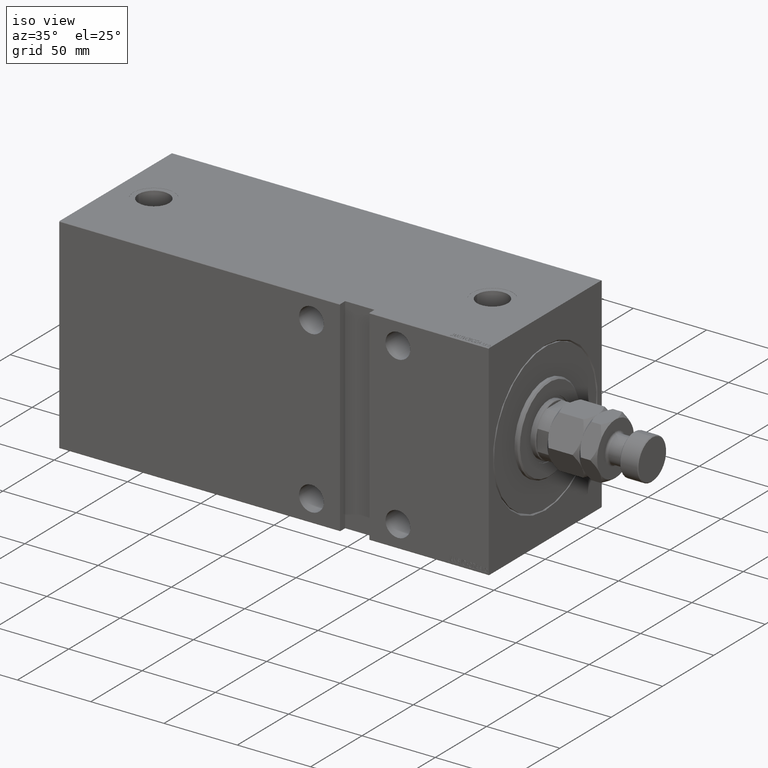
[diagram: clean part render]
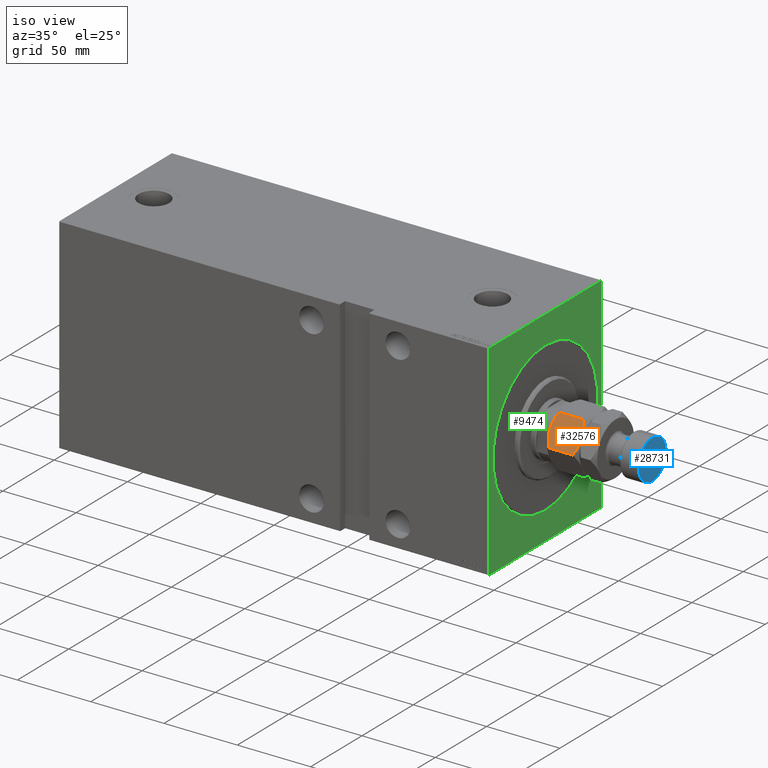
[diagram: same view with three faces highlighted in distinct colors, each labeled with its STEP entity id]
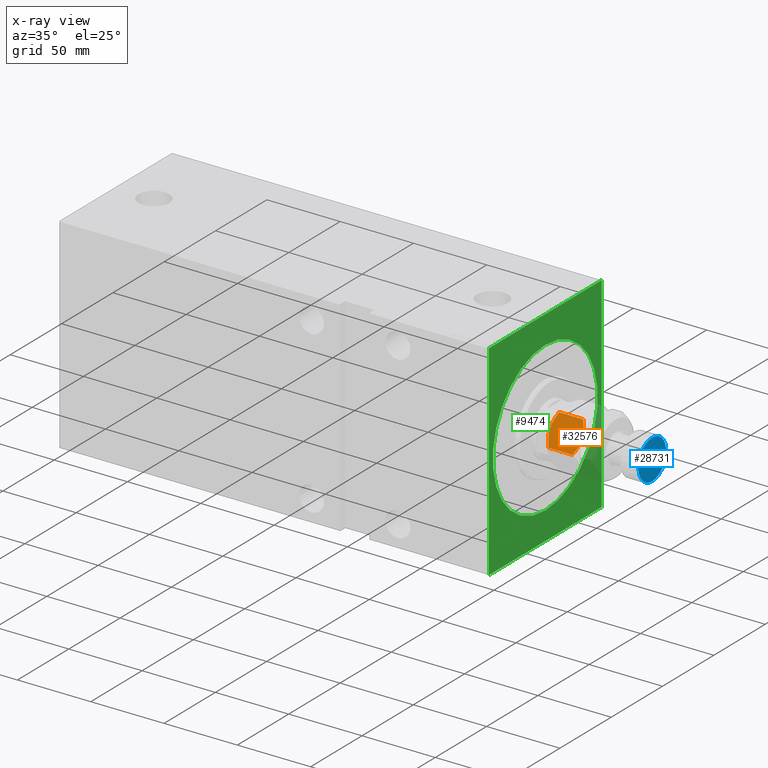
[diagram: x-ray of the same camera — body ghosted, the three highlighted faces saturated]
A machine part, iso view with three faces highlighted in distinct colors.
The next image is the same camera in x-ray (body ghosted, the three faces saturated) — at least one of them is partly hidden behind the body in this view.
Their STEP definitions:

[orange] entity #32576 — the highlighted planar face has unit normal (-0, 0.866, -0.5).
#710 = ORIENTED_EDGE ( 'NONE', *, *, #46075, .F. ) ;
#1133 = ORIENTED_EDGE ( 'NONE', *, *, #8473, .F. ) ;
#1909 = DIRECTION ( 'NONE',  ( -0.000000000000000000, -0.000000000000000000, -1.000000000000000000 ) ) ;
#3126 = AXIS2_PLACEMENT_3D ( 'NONE', #7617, #7387, #30162 ) ;
#3670 = CARTESIAN_POINT ( 'NONE',  ( -10.58425150785354241, -14.67378923359658316, 21.91305310988184374 ) ) ;
#4448 = VERTEX_POINT ( 'NONE', #8322 ) ;
#4556 = CARTESIAN_POINT ( 'NONE',  ( -16.59030399953601176, -11.20619321075668928, 1.970721325483051567 ) ) ;
#4992 = CARTESIAN_POINT ( 'NONE',  ( -5.711424626294094742E-16, -20.78460969082652454, 2.784609690826514772 ) ) ;
#5643 = CARTESIAN_POINT ( 'NONE',  ( -7.434539168300457135, -16.49227650070744033, 22.00000000000000000 ) ) ;
#7372 = EDGE_CURVE ( 'NONE', #9324, #4448, #29691, .T. ) ;
#7387 = DIRECTION ( 'NONE',  ( 0.4999999999999998335, 0.8660254037844387076, -0.000000000000000000 ) ) ;
#7583 = CARTESIAN_POINT ( 'NONE',  ( -10.56546083169953576, -14.68463803553235181, 8.233160247311796338E-16 ) ) ;
#7617 = CARTESIAN_POINT ( 'NONE',  ( -18.00000000000000000, -10.39230484541326582, 22.00000000000000000 ) ) ;
#8322 = CARTESIAN_POINT ( 'NONE',  ( -8.999999999999996447, -15.58845726811989607, 0.000000000000000000 ) ) ;
#8473 = EDGE_CURVE ( 'NONE', #29323, #9324, #24961, .T. ) ;
#9324 = VERTEX_POINT ( 'NONE', #4992 ) ;
#10188 = CARTESIAN_POINT ( 'NONE',  ( -10.97671975407795131, -14.44719758599054060, 21.86127740090141458 ) ) ;
#10389 = VERTEX_POINT ( 'NONE', #31986 ) ;
#10557 = EDGE_CURVE ( 'NONE', #10389, #19637, #44066, .T. ) ;
#13362 = EDGE_CURVE ( 'NONE', #4448, #19637, #19256, .T. ) ;
#13681 = CARTESIAN_POINT ( 'NONE',  ( -18.00000000000000000, -10.39230484541326582, 19.21539030917347901 ) ) ;
#16126 = CARTESIAN_POINT ( 'NONE',  ( -1.411330396252045816, -19.96977770663490759, 1.969777706634897152 ) ) ;
#16723 = ORIENTED_EDGE ( 'NONE', *, *, #10557, .T. ) ;
#17491 = CARTESIAN_POINT ( 'NONE',  ( -5.895697476400521886, -17.38072716576608912, 21.72360409287842131 ) ) ;
#18337 = PLANE ( 'NONE',  #3126 ) ;
#18522 = CARTESIAN_POINT ( 'NONE',  ( -15.13928418966203004, -12.04393988858690712, 1.272574701504241901 ) ) ;
#18752 = CARTESIAN_POINT ( 'NONE',  ( -12.10430252359947723, -13.79618737047370303, 0.2763959071215840724 ) ) ;
#19256 = B_SPLINE_CURVE_WITH_KNOTS ( 'NONE', 3,
 ( #25285, #7583, #18752, #18522, #4556, #21800 ),
 .UNSPECIFIED., .F., .F.,
 ( 4, 2, 4 ),
 ( 0.01077282027732746374, 0.01612137750481872772, 0.02146993473230999344 ),
 .UNSPECIFIED. ) ;
#19637 = VERTEX_POINT ( 'NONE', #26983 ) ;
#19783 = B_SPLINE_CURVE_WITH_KNOTS ( 'NONE', 3,
 ( #13681, #39082, #21597, #27923, #28367, #10188, #3670, #24406, #46076, #20911 ),
 .UNSPECIFIED., .F., .F.,
 ( 4, 2, 2, 2, 4 ),
 ( 2.544307986796311447E-07, 0.005386537354063076002, 0.008079678815695275074, 0.009426249546511373742, 0.01077282027732747068 ),
 .UNSPECIFIED. ) ;
#20205 = ORIENTED_EDGE ( 'NONE', *, *, #43021, .F. ) ;
#20312 = CARTESIAN_POINT ( 'NONE',  ( -8.605874323383764235, -15.81600583360881807, 9.080193194566099635E-16 ) ) ;
#20911 = CARTESIAN_POINT ( 'NONE',  ( -8.999999999999994671, -15.58845726811989252, 22.00000000000000000 ) ) ;
#21471 = DIRECTION ( 'NONE',  ( -0.000000000000000000, -0.000000000000000000, -1.000000000000000000 ) ) ;
#21597 = CARTESIAN_POINT ( 'NONE',  ( -15.14539811114618573, -12.04041001437222569, 20.72261692211012729 ) ) ;
#21789 = CARTESIAN_POINT ( 'NONE',  ( -6.333703707815436362E-16, -20.78460969082652454, 19.21539030917348256 ) ) ;
#21800 = CARTESIAN_POINT ( 'NONE',  ( -18.00000000000000000, -10.39230484541326582, 2.784609690826517436 ) ) ;
#24049 = VECTOR ( 'NONE', #1909, 1000.000000000000000 ) ;
#24406 = CARTESIAN_POINT ( 'NONE',  ( -9.790461530629873010, -15.13208409062669624, 21.98266714352591222 ) ) ;
#24961 = LINE ( 'NONE', #28236, #44806 ) ;
#25285 = CARTESIAN_POINT ( 'NONE',  ( -8.999999999999996447, -15.58845726811989607, 0.000000000000000000 ) ) ;
#26361 = CARTESIAN_POINT ( 'NONE',  ( -18.00000000000000000, -10.39230484541326582, 22.00000000000000000 ) ) ;
#26845 = CARTESIAN_POINT ( 'NONE',  ( -7.023280245922045140, -16.72971695024925509, 0.1387225990985768986 ) ) ;
#26983 = CARTESIAN_POINT ( 'NONE',  ( -18.00000000000000000, -10.39230484541326582, 2.784609690826517436 ) ) ;
#27923 = CARTESIAN_POINT ( 'NONE',  ( -12.90267270303527525, -13.33524813246347129, 21.46291444417098049 ) ) ;
#28236 = CARTESIAN_POINT ( 'NONE',  ( -8.673617379884035472E-16, -20.78460969082652454, 22.00000000000000000 ) ) ;
#28367 = CARTESIAN_POINT ( 'NONE',  ( -12.14199022028319774, -13.77442836864821984, 21.65943689774472602 ) ) ;
#29323 = VERTEX_POINT ( 'NONE', #21789 ) ;
#29691 = B_SPLINE_CURVE_WITH_KNOTS ( 'NONE', 3,
 ( #29881, #16126, #40591, #44548, #41279, #26845, #30118, #44323, #20312, #33605 ),
 .UNSPECIFIED., .F., .F.,
 ( 4, 2, 2, 2, 4 ),
 ( 2.544307986815391393E-07, 0.005386537354063073400, 0.008079678815695269870, 0.009426249546511366803, 0.01077282027732746374 ),
 .UNSPECIFIED. ) ;
#29881 = CARTESIAN_POINT ( 'NONE',  ( -5.711424626294094742E-16, -20.78460969082652454, 2.784609690826514772 ) ) ;
#30118 = CARTESIAN_POINT ( 'NONE',  ( -7.415748492146452264, -16.50312530264320898, 0.08694689011815484592 ) ) ;
#30162 = DIRECTION ( 'NONE',  ( -0.8660254037844387076, 0.4999999999999998335, 0.000000000000000000 ) ) ;
#31722 = CARTESIAN_POINT ( 'NONE',  ( -1.409696000463988463, -19.97072132548310108, 20.02927867451694510 ) ) ;
#31986 = CARTESIAN_POINT ( 'NONE',  ( -18.00000000000000000, -10.39230484541326582, 19.21539030917347901 ) ) ;
#32576 = ADVANCED_FACE ( 'NONE', ( #44129 ), #18337, .F. ) ;
#33379 = B_SPLINE_CURVE_WITH_KNOTS ( 'NONE', 3,
 ( #40805, #5643, #17491, #38921, #31722, #41960 ),
 .UNSPECIFIED., .F., .F.,
 ( 4, 2, 4 ),
 ( 0.01077282027732747068, 0.01612137750481873466, 0.02146993473230999691 ),
 .UNSPECIFIED. ) ;
#33605 = CARTESIAN_POINT ( 'NONE',  ( -8.999999999999996447, -15.58845726811989607, 0.000000000000000000 ) ) ;
#36332 = EDGE_LOOP ( 'NONE', ( #42216, #1133, #710, #20205, #16723, #42282 ) ) ;
#38921 = CARTESIAN_POINT ( 'NONE',  ( -2.860715810337963294, -19.13297464765287614, 20.72742529849575277 ) ) ;
#39082 = CARTESIAN_POINT ( 'NONE',  ( -16.58866960374795241, -11.20713682960488633, 20.03022229336509596 ) ) ;
#40591 = CARTESIAN_POINT ( 'NONE',  ( -2.854601888853810721, -19.13650452186755757, 1.277383077889868046 ) ) ;
#40805 = CARTESIAN_POINT ( 'NONE',  ( -8.999999999999994671, -15.58845726811989252, 22.00000000000000000 ) ) ;
#41279 = CARTESIAN_POINT ( 'NONE',  ( -5.858009779716799592, -17.40248616759157230, 0.3405631022552689235 ) ) ;
#41960 = CARTESIAN_POINT ( 'NONE',  ( -6.333703707815436362E-16, -20.78460969082652454, 19.21539030917348256 ) ) ;
#42216 = ORIENTED_EDGE ( 'NONE', *, *, #7372, .F. ) ;
#42282 = ORIENTED_EDGE ( 'NONE', *, *, #13362, .F. ) ;
#43021 = EDGE_CURVE ( 'NONE', #10389, #43910, #19783, .T. ) ;
#43910 = VERTEX_POINT ( 'NONE', #43999 ) ;
#43999 = CARTESIAN_POINT ( 'NONE',  ( -8.999999999999994671, -15.58845726811989252, 22.00000000000000000 ) ) ;
#44066 = LINE ( 'NONE', #26361, #24049 ) ;
#44129 = FACE_OUTER_BOUND ( 'NONE', #36332, .T. ) ;
#44323 = CARTESIAN_POINT ( 'NONE',  ( -8.209538469370123437, -16.04483044561309768, 0.01733285647409000055 ) ) ;
#44548 = CARTESIAN_POINT ( 'NONE',  ( -5.097327296964719423, -17.84166640377631197, 0.5370855558290080767 ) ) ;
#44806 = VECTOR ( 'NONE', #21471, 1000.000000000000000 ) ;
#46075 = EDGE_CURVE ( 'NONE', #43910, #29323, #33379, .T. ) ;
#46076 = CARTESIAN_POINT ( 'NONE',  ( -9.394125676616230436, -15.36090870263097230, 22.00000000000000000 ) ) ;

[blue] entity #28731 — the highlighted planar face has unit normal (1, 0, -0).
#551 = CARTESIAN_POINT ( 'NONE',  ( 0.000000000000000000, 0.000000000000000000, 59.00000000000000000 ) ) ;
#2077 = EDGE_CURVE ( 'NONE', #19914, #28566, #39543, .T. ) ;
#3587 = DIRECTION ( 'NONE',  ( 0.000000000000000000, 0.000000000000000000, 1.000000000000000000 ) ) ;
#7181 = ORIENTED_EDGE ( 'NONE', *, *, #2077, .T. ) ;
#10791 = AXIS2_PLACEMENT_3D ( 'NONE', #37024, #33515, #32602 ) ;
#12774 = DIRECTION ( 'NONE',  ( 1.000000000000000000, 0.000000000000000000, -0.000000000000000000 ) ) ;
#13820 = DIRECTION ( 'NONE',  ( 1.000000000000000000, 0.000000000000000000, 0.000000000000000000 ) ) ;
#17640 = EDGE_LOOP ( 'NONE', ( #35734, #7181 ) ) ;
#19914 = VERTEX_POINT ( 'NONE', #26468 ) ;
#20241 = PLANE ( 'NONE',  #26836 ) ;
#20487 = EDGE_CURVE ( 'NONE', #28566, #19914, #30895, .T. ) ;
#23514 = FACE_OUTER_BOUND ( 'NONE', #17640, .T. ) ;
#26468 = CARTESIAN_POINT ( 'NONE',  ( 13.50000000000001954, 1.683889348827612034E-15, 59.00000000000000000 ) ) ;
#26836 = AXIS2_PLACEMENT_3D ( 'NONE', #40975, #44486, #12774 ) ;
#26879 = AXIS2_PLACEMENT_3D ( 'NONE', #551, #3587, #13820 ) ;
#28566 = VERTEX_POINT ( 'NONE', #38239 ) ;
#28731 = ADVANCED_FACE ( 'NONE', ( #23514 ), #20241, .T. ) ;
#30895 = CIRCLE ( 'NONE', #10791, 13.50000000000001954 ) ;
#32602 = DIRECTION ( 'NONE',  ( 1.000000000000000000, 0.000000000000000000, 0.000000000000000000 ) ) ;
#33515 = DIRECTION ( 'NONE',  ( 0.000000000000000000, 0.000000000000000000, 1.000000000000000000 ) ) ;
#35734 = ORIENTED_EDGE ( 'NONE', *, *, #20487, .T. ) ;
#37024 = CARTESIAN_POINT ( 'NONE',  ( 0.000000000000000000, 0.000000000000000000, 59.00000000000000000 ) ) ;
#38239 = CARTESIAN_POINT ( 'NONE',  ( -13.50000000000001954, 0.000000000000000000, 59.00000000000000000 ) ) ;
#39543 = CIRCLE ( 'NONE', #26879, 13.50000000000001954 ) ;
#40975 = CARTESIAN_POINT ( 'NONE',  ( 0.000000000000000000, 0.000000000000000000, 59.00000000000000000 ) ) ;
#44486 = DIRECTION ( 'NONE',  ( 0.000000000000000000, 0.000000000000000000, 1.000000000000000000 ) ) ;

[green] entity #9474 — the highlighted planar face has unit normal (-1, -0, 0).
#48 = CARTESIAN_POINT ( 'NONE',  ( 0.000000000000000000, 0.000000000000000000, 0.000000000000000000 ) ) ;
#522 = DIRECTION ( 'NONE',  ( 0.000000000000000000, 0.000000000000000000, -1.000000000000000000 ) ) ;
#630 = CARTESIAN_POINT ( 'NONE',  ( 0.000000000000000000, 55.00000000000002132, -70.00000000000000000 ) ) ;
#818 = DIRECTION ( 'NONE',  ( 0.000000000000000000, -0.7071067811865474617, -0.7071067811865474617 ) ) ;
#927 = VERTEX_POINT ( 'NONE', #27760 ) ;
#1040 = CARTESIAN_POINT ( 'NONE',  ( 0.000000000000000000, -54.99999999999999289, -70.00000000000000000 ) ) ;
#1162 = VECTOR ( 'NONE', #13853, 1000.000000000000000 ) ;
#1416 = VERTEX_POINT ( 'NONE', #36523 ) ;
#3238 = CARTESIAN_POINT ( 'NONE',  ( 0.000000000000000000, 6.245698675651492556E-15, -50.99999999999993605 ) ) ;
#4023 = DIRECTION ( 'NONE',  ( 1.000000000000000000, 0.000000000000000000, 0.000000000000000000 ) ) ;
#4896 = CARTESIAN_POINT ( 'NONE',  ( 0.000000000000000000, 0.000000000000000000, 0.000000000000000000 ) ) ;
#5121 = DIRECTION ( 'NONE',  ( 0.000000000000000000, 0.000000000000000000, -1.000000000000000000 ) ) ;
#6154 = AXIS2_PLACEMENT_3D ( 'NONE', #48, #4023, #522 ) ;
#6187 = ORIENTED_EDGE ( 'NONE', *, *, #43179, .F. ) ;
#6731 = AXIS2_PLACEMENT_3D ( 'NONE', #28499, #11214, #10991 ) ;
#6813 = PLANE ( 'NONE',  #6154 ) ;
#7073 = CARTESIAN_POINT ( 'NONE',  ( 0.000000000000000000, 54.99999999999999289, 69.70000000000001705 ) ) ;
#7327 = LINE ( 'NONE', #38788, #1162 ) ;
#7426 = ORIENTED_EDGE ( 'NONE', *, *, #32165, .T. ) ;
#9145 = EDGE_CURVE ( 'NONE', #1416, #15401, #35525, .T. ) ;
#9474 = ADVANCED_FACE ( 'NONE', ( #38731, #21264 ), #6813, .F. ) ;
#10280 = EDGE_LOOP ( 'NONE', ( #25368, #7426 ) ) ;
#10577 = VECTOR ( 'NONE', #16035, 1000.000000000000114 ) ;
#10641 = DIRECTION ( 'NONE',  ( -0.000000000000000000, 0.7071067811865474617, -0.7071067811865474617 ) ) ;
#10807 = DIRECTION ( 'NONE',  ( 0.000000000000000000, -1.000000000000000000, 0.000000000000000000 ) ) ;
#10991 = DIRECTION ( 'NONE',  ( 0.000000000000000000, 0.000000000000000000, -1.000000000000000000 ) ) ;
#11214 = DIRECTION ( 'NONE',  ( 1.000000000000000000, 0.000000000000000000, 0.000000000000000000 ) ) ;
#11256 = LINE ( 'NONE', #18717, #41222 ) ;
#11394 = DIRECTION ( 'NONE',  ( 1.000000000000000000, 0.000000000000000000, 0.000000000000000000 ) ) ;
#12104 = VERTEX_POINT ( 'NONE', #3238 ) ;
#12296 = LINE ( 'NONE', #26052, #10577 ) ;
#13629 = CARTESIAN_POINT ( 'NONE',  ( 0.000000000000000000, 0.000000000000000000, 50.99999999999993605 ) ) ;
#13853 = DIRECTION ( 'NONE',  ( 0.000000000000000000, 0.000000000000000000, -1.000000000000000000 ) ) ;
#13984 = CARTESIAN_POINT ( 'NONE',  ( 0.000000000000000000, 54.69999999999999574, -70.00000000000000000 ) ) ;
#14232 = CARTESIAN_POINT ( 'NONE',  ( 0.000000000000000000, -54.99999999999999289, -69.70000000000001705 ) ) ;
#14307 = CARTESIAN_POINT ( 'NONE',  ( 0.000000000000000000, -54.69999999999999574, -70.00000000000000000 ) ) ;
#14544 = VECTOR ( 'NONE', #43205, 1000.000000000000000 ) ;
#15401 = VERTEX_POINT ( 'NONE', #14232 ) ;
#15540 = CARTESIAN_POINT ( 'NONE',  ( 0.000000000000000000, -54.69999999999999574, 70.00000000000000000 ) ) ;
#16035 = DIRECTION ( 'NONE',  ( -0.000000000000000000, 0.7071067811865474617, 0.7071067811865474617 ) ) ;
#16169 = CARTESIAN_POINT ( 'NONE',  ( 0.000000000000000000, -54.99999999999999289, 69.70000000000001705 ) ) ;
#17361 = ORIENTED_EDGE ( 'NONE', *, *, #37357, .T. ) ;
#17745 = VERTEX_POINT ( 'NONE', #27379 ) ;
#17802 = DIRECTION ( 'NONE',  ( -0.000000000000000000, -0.7071067811865474617, 0.7071067811865474617 ) ) ;
#18625 = CIRCLE ( 'NONE', #6731, 50.99999999999993605 ) ;
#18710 = ORIENTED_EDGE ( 'NONE', *, *, #20942, .F. ) ;
#18717 = CARTESIAN_POINT ( 'NONE',  ( 0.000000000000000000, 54.99999999999999289, 70.00000000000000000 ) ) ;
#20294 = VECTOR ( 'NONE', #17802, 1000.000000000000114 ) ;
#20942 = EDGE_CURVE ( 'NONE', #45658, #15401, #7327, .T. ) ;
#21264 = FACE_OUTER_BOUND ( 'NONE', #44749, .T. ) ;
#21526 = ORIENTED_EDGE ( 'NONE', *, *, #23268, .T. ) ;
#22904 = ORIENTED_EDGE ( 'NONE', *, *, #38205, .T. ) ;
#23268 = EDGE_CURVE ( 'NONE', #17745, #25528, #35584, .T. ) ;
#24867 = CARTESIAN_POINT ( 'NONE',  ( 0.000000000000000000, 54.69999999999999574, 70.00000000000000000 ) ) ;
#25368 = ORIENTED_EDGE ( 'NONE', *, *, #33201, .T. ) ;
#25528 = VERTEX_POINT ( 'NONE', #7073 ) ;
#26052 = CARTESIAN_POINT ( 'NONE',  ( 0.000000000000000000, -54.99999999999999289, 69.70000000000001705 ) ) ;
#27379 = CARTESIAN_POINT ( 'NONE',  ( 0.000000000000000000, 54.69999999999999574, 70.00000000000000000 ) ) ;
#27599 = CIRCLE ( 'NONE', #38764, 50.99999999999993605 ) ;
#27760 = CARTESIAN_POINT ( 'NONE',  ( 0.000000000000000000, 55.00000000000002132, -69.69999999999998863 ) ) ;
#28247 = VERTEX_POINT ( 'NONE', #13629 ) ;
#28499 = CARTESIAN_POINT ( 'NONE',  ( 0.000000000000000000, 0.000000000000000000, 0.000000000000000000 ) ) ;
#29006 = LINE ( 'NONE', #1040, #14544 ) ;
#32165 = EDGE_CURVE ( 'NONE', #12104, #28247, #18625, .T. ) ;
#32523 = CARTESIAN_POINT ( 'NONE',  ( 0.000000000000000000, 55.00000000000002132, -69.69999999999998863 ) ) ;
#33201 = EDGE_CURVE ( 'NONE', #28247, #12104, #27599, .T. ) ;
#35525 = LINE ( 'NONE', #14307, #20294 ) ;
#35584 = LINE ( 'NONE', #24867, #45135 ) ;
#36523 = CARTESIAN_POINT ( 'NONE',  ( 0.000000000000000000, -54.69999999999999574, -70.00000000000000000 ) ) ;
#37357 = EDGE_CURVE ( 'NONE', #45658, #39407, #12296, .T. ) ;
#37375 = LINE ( 'NONE', #630, #44991 ) ;
#38179 = VECTOR ( 'NONE', #818, 1000.000000000000114 ) ;
#38205 = EDGE_CURVE ( 'NONE', #927, #46108, #43214, .T. ) ;
#38731 = FACE_BOUND ( 'NONE', #10280, .T. ) ;
#38764 = AXIS2_PLACEMENT_3D ( 'NONE', #4896, #11394, #5121 ) ;
#38788 = CARTESIAN_POINT ( 'NONE',  ( 0.000000000000000000, -54.99999999999999289, 70.00000000000000000 ) ) ;
#39407 = VERTEX_POINT ( 'NONE', #15540 ) ;
#40230 = ORIENTED_EDGE ( 'NONE', *, *, #9145, .T. ) ;
#41222 = VECTOR ( 'NONE', #10807, 1000.000000000000000 ) ;
#42401 = EDGE_CURVE ( 'NONE', #17745, #39407, #11256, .T. ) ;
#43179 = EDGE_CURVE ( 'NONE', #927, #25528, #37375, .T. ) ;
#43205 = DIRECTION ( 'NONE',  ( 0.000000000000000000, 1.000000000000000000, 0.000000000000000000 ) ) ;
#43214 = LINE ( 'NONE', #32523, #38179 ) ;
#43484 = DIRECTION ( 'NONE',  ( 0.000000000000000000, -1.982541115402065110E-16, 1.000000000000000000 ) ) ;
#43750 = ORIENTED_EDGE ( 'NONE', *, *, #45403, .F. ) ;
#44749 = EDGE_LOOP ( 'NONE', ( #45908, #21526, #6187, #22904, #43750, #40230, #18710, #17361 ) ) ;
#44991 = VECTOR ( 'NONE', #43484, 1000.000000000000000 ) ;
#45135 = VECTOR ( 'NONE', #10641, 1000.000000000000114 ) ;
#45403 = EDGE_CURVE ( 'NONE', #1416, #46108, #29006, .T. ) ;
#45658 = VERTEX_POINT ( 'NONE', #16169 ) ;
#45908 = ORIENTED_EDGE ( 'NONE', *, *, #42401, .F. ) ;
#46108 = VERTEX_POINT ( 'NONE', #13984 ) ;